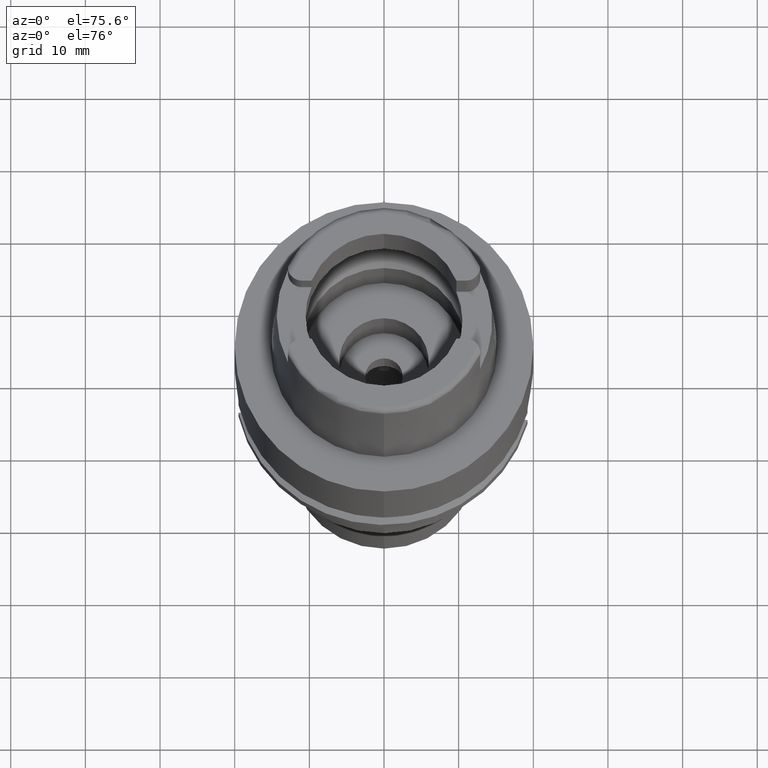
[diagram: clean part render]
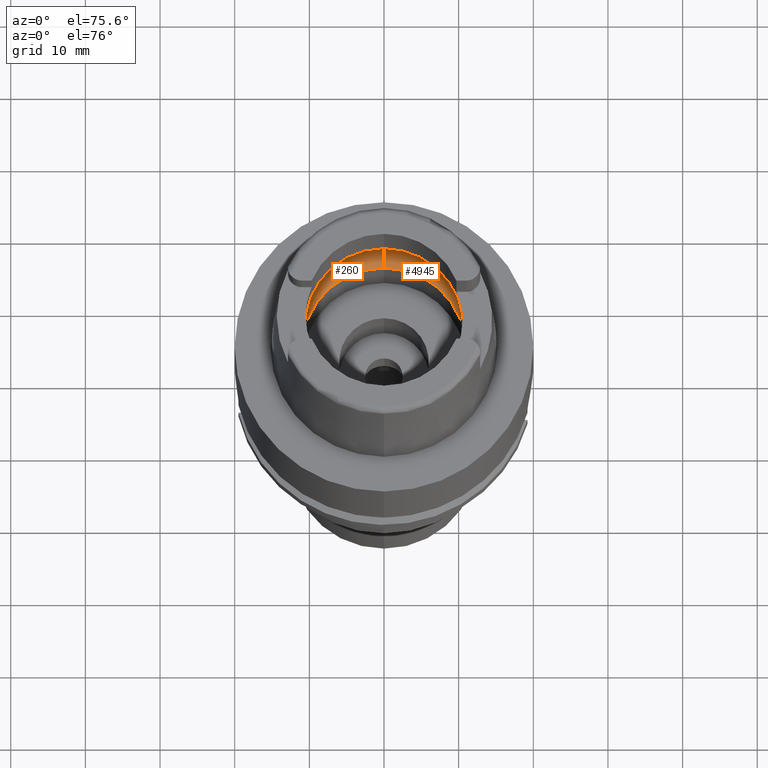
[diagram: same view with one multi-face feature highlighted, each face labeled with its STEP entity id]
A machine part, auxiliary view. The highlighted faces form ONE feature: a constant-radius fillet chain: 2 tangent blend faces with common blend radius 5 mm. The faces share edges in the B-rep.
Their STEP definitions:
[1] entity #260 (Torus):
#19 = AXIS2_PLACEMENT_3D ( 'NONE', #4077, #236, #1952 ) ;
#37 = CARTESIAN_POINT ( 'NONE',  ( -12.74455357708000136, -0.1165037945226000127, 3.700000000000000178 ) ) ;
#62 = CARTESIAN_POINT ( 'NONE',  ( -12.73125908545999962, 0.6899141010797000817, 3.796695173512999677 ) ) ;
#151 = VERTEX_POINT ( 'NONE', #2328 ) ;
#236 = DIRECTION ( 'NONE',  ( 0.0000000000000000000, 0.0000000000000000000, -1.000000000000000000 ) ) ;
#260 = ADVANCED_FACE ( 'NONE', ( #3687 ), #280, .F. ) ;
#280 = TOROIDAL_SURFACE ( 'NONE', #3948, 7.750000000000000000, 5.000000000000000000 ) ;
#296 = AXIS2_PLACEMENT_3D ( 'NONE', #4622, #1125, #5003 ) ;
#481 = CARTESIAN_POINT ( 'NONE',  ( 0.0000000000000000000, 7.750000000000000000, 3.933312163512999504 ) ) ;
#522 = CARTESIAN_POINT ( 'NONE',  ( 0.0000000000000000000, 1.272815980657999902E-14, 3.933312163512999504 ) ) ;
#709 = CIRCLE ( 'NONE', #1789, 5.000000000000000888 ) ;
#820 = ORIENTED_EDGE ( 'NONE', *, *, #4923, .F. ) ;
#864 = ORIENTED_EDGE ( 'NONE', *, *, #1556, .F. ) ;
#904 = CARTESIAN_POINT ( 'NONE',  ( -12.74455357708000136, 0.1165095118199000052, 3.700000000000000178 ) ) ;
#918 = AXIS2_PLACEMENT_3D ( 'NONE', #3385, #1004, #2553 ) ;
#942 = DIRECTION ( 'NONE',  ( 0.0000000000000000000, 0.0000000000000000000, -1.000000000000000000 ) ) ;
#1004 = DIRECTION ( 'NONE',  ( 0.0000000000000000000, 0.0000000000000000000, 1.000000000000000000 ) ) ;
#1125 = DIRECTION ( 'NONE',  ( 0.0000000000000000000, 0.0000000000000000000, -1.000000000000000000 ) ) ;
#1146 = CARTESIAN_POINT ( 'NONE',  ( -12.70998420979999999, 1.009356917307999923, 3.933312163512999504 ) ) ;
#1320 = ORIENTED_EDGE ( 'NONE', *, *, #3336, .T. ) ;
#1355 = DIRECTION ( 'NONE',  ( -1.000000000000000000, 0.0000000000000000000, 0.0000000000000000000 ) ) ;
#1497 = EDGE_CURVE ( 'NONE', #4737, #3466, #2034, .T. ) ;
#1556 = EDGE_CURVE ( 'NONE', #3466, #1939, #2564, .T. ) ;
#1562 = EDGE_CURVE ( 'NONE', #151, #2622, #1913, .T. ) ;
#1732 = DIRECTION ( 'NONE',  ( 0.0000000000000000000, -1.000000000000000000, 0.0000000000000000000 ) ) ;
#1750 = CARTESIAN_POINT ( 'NONE',  ( -12.74455357708000136, 0.0000000000000000000, 3.700000000000000178 ) ) ;
#1789 = AXIS2_PLACEMENT_3D ( 'NONE', #481, #3053, #5091 ) ;
#1792 = EDGE_CURVE ( 'NONE', #1939, #5210, #5117, .T. ) ;
#1913 = CIRCLE ( 'NONE', #3066, 5.000000000000000888 ) ;
#1939 = VERTEX_POINT ( 'NONE', #1146 ) ;
#1952 = DIRECTION ( 'NONE',  ( 0.0000000000000000000, -1.000000000000000000, 0.0000000000000000000 ) ) ;
#2003 = EDGE_CURVE ( 'NONE', #4851, #151, #4767, .T. ) ;
#2030 = ORIENTED_EDGE ( 'NONE', *, *, #1562, .F. ) ;
#2034 = B_SPLINE_CURVE_WITH_KNOTS ( 'NONE', 3,
 ( #3904, #2650, #4718, #2178, #37, #1750 ),
 .UNSPECIFIED., .F., .F.,
 ( 4, 1, 1, 4 ),
 ( 0.0000000000000000000, 0.3333333333333000081, 0.6666666666667000474, 1.000000000000000000 ),
 .UNSPECIFIED. ) ;
#2178 = CARTESIAN_POINT ( 'NONE',  ( -12.74221194267000001, -0.3492494412506000345, 3.717724215756999850 ) ) ;
#2328 = CARTESIAN_POINT ( 'NONE',  ( 0.0000000000000000000, -10.90000000000000036, 0.05033650044222000297 ) ) ;
#2426 = CARTESIAN_POINT ( 'NONE',  ( -12.70998420979999999, -1.009356917307999923, 3.933312163512999504 ) ) ;
#2503 = CARTESIAN_POINT ( 'NONE',  ( 0.0000000000000000000, -12.75000000000000000, 3.933312163512999504 ) ) ;
#2553 = DIRECTION ( 'NONE',  ( 0.0000000000000000000, 1.000000000000000000, 0.0000000000000000000 ) ) ;
#2564 = B_SPLINE_CURVE_WITH_KNOTS ( 'NONE', 3,
 ( #3032, #904, #2617, #62, #3480, #3848 ),
 .UNSPECIFIED., .F., .F.,
 ( 4, 1, 1, 4 ),
 ( 0.0000000000000000000, 0.3333333333333000081, 0.6666666666667000474, 1.000000000000000000 ),
 .UNSPECIFIED. ) ;
#2617 = CARTESIAN_POINT ( 'NONE',  ( -12.74221162530000129, 0.3492624308045999548, 3.717726546203000026 ) ) ;
#2622 = VERTEX_POINT ( 'NONE', #2503 ) ;
#2636 = ORIENTED_EDGE ( 'NONE', *, *, #1497, .F. ) ;
#2650 = CARTESIAN_POINT ( 'NONE',  ( -12.71822740498000215, -0.9055572814164000173, 3.882617095467000290 ) ) ;
#2693 = CARTESIAN_POINT ( 'NONE',  ( -12.74455357708000136, 0.0000000000000000000, 3.700000000000000178 ) ) ;
#3032 = CARTESIAN_POINT ( 'NONE',  ( -12.74455357708000136, 0.0000000000000000000, 3.700000000000000178 ) ) ;
#3053 = DIRECTION ( 'NONE',  ( 1.000000000000000000, 0.0000000000000000000, 0.0000000000000000000 ) ) ;
#3066 = AXIS2_PLACEMENT_3D ( 'NONE', #5181, #1355, #4363 ) ;
#3336 = EDGE_CURVE ( 'NONE', #4851, #5210, #709, .T. ) ;
#3385 = CARTESIAN_POINT ( 'NONE',  ( 0.0000000000000000000, 1.272815980657999902E-14, 0.05033650044222000297 ) ) ;
#3403 = CARTESIAN_POINT ( 'NONE',  ( 0.0000000000000000000, 10.90000000000000036, 0.05033650044222000297 ) ) ;
#3466 = VERTEX_POINT ( 'NONE', #2693 ) ;
#3478 = CARTESIAN_POINT ( 'NONE',  ( 0.0000000000000000000, 12.75000000000000000, 3.933312163512999504 ) ) ;
#3480 = CARTESIAN_POINT ( 'NONE',  ( -12.71822750039000027, 0.9055560800185999959, 3.882616508711999703 ) ) ;
#3687 = FACE_OUTER_BOUND ( 'NONE', #4376, .T. ) ;
#3848 = CARTESIAN_POINT ( 'NONE',  ( -12.70998420979999999, 1.009356917307999923, 3.933312163512999504 ) ) ;
#3904 = CARTESIAN_POINT ( 'NONE',  ( -12.70998420979999999, -1.009356917307999923, 3.933312163512999504 ) ) ;
#3948 = AXIS2_PLACEMENT_3D ( 'NONE', #522, #942, #1732 ) ;
#4063 = ORIENTED_EDGE ( 'NONE', *, *, #1792, .F. ) ;
#4077 = CARTESIAN_POINT ( 'NONE',  ( 0.0000000000000000000, 1.272815980657999902E-14, 3.933312163512999504 ) ) ;
#4363 = DIRECTION ( 'NONE',  ( 0.0000000000000000000, -0.6299999999999791322, -0.7765951326141738997 ) ) ;
#4376 = EDGE_LOOP ( 'NONE', ( #820, #2030, #5495, #1320, #4063, #864, #2636 ) ) ;
#4622 = CARTESIAN_POINT ( 'NONE',  ( 0.0000000000000000000, 1.272815980657999902E-14, 3.933312163512999504 ) ) ;
#4718 = CARTESIAN_POINT ( 'NONE',  ( -12.73125904559999988, -0.6899170685545000792, 3.796695516226999523 ) ) ;
#4737 = VERTEX_POINT ( 'NONE', #2426 ) ;
#4767 = CIRCLE ( 'NONE', #918, 10.90000000000000036 ) ;
#4851 = VERTEX_POINT ( 'NONE', #3403 ) ;
#4852 = CIRCLE ( 'NONE', #19, 12.75000000000000000 ) ;
#4923 = EDGE_CURVE ( 'NONE', #2622, #4737, #4852, .T. ) ;
#5003 = DIRECTION ( 'NONE',  ( -0.9968615066513395462, 0.07916524841634305087, 0.0000000000000000000 ) ) ;
#5091 = DIRECTION ( 'NONE',  ( 0.0000000000000000000, 0.6299999999999791322, -0.7765951326141738997 ) ) ;
#5117 = CIRCLE ( 'NONE', #296, 12.75000000000000533 ) ;
#5181 = CARTESIAN_POINT ( 'NONE',  ( 0.0000000000000000000, -7.750000000000000000, 3.933312163512999504 ) ) ;
#5210 = VERTEX_POINT ( 'NONE', #3478 ) ;
#5495 = ORIENTED_EDGE ( 'NONE', *, *, #2003, .F. ) ;
[2] entity #4945 (Torus):
#119 = ORIENTED_EDGE ( 'NONE', *, *, #569, .F. ) ;
#151 = VERTEX_POINT ( 'NONE', #2328 ) ;
#218 = CARTESIAN_POINT ( 'NONE',  ( 12.70998420979999999, 1.009356917307000057, 3.933312163512999504 ) ) ;
#263 = FACE_OUTER_BOUND ( 'NONE', #3534, .T. ) ;
#326 = DIRECTION ( 'NONE',  ( 0.0000000000000000000, -1.000000000000000000, 0.0000000000000000000 ) ) ;
#481 = CARTESIAN_POINT ( 'NONE',  ( 0.0000000000000000000, 7.750000000000000000, 3.933312163512999504 ) ) ;
#509 = ORIENTED_EDGE ( 'NONE', *, *, #3906, .F. ) ;
#542 = CIRCLE ( 'NONE', #3665, 10.90000000000000036 ) ;
#569 = EDGE_CURVE ( 'NONE', #5210, #1719, #907, .T. ) ;
#608 = CARTESIAN_POINT ( 'NONE',  ( 12.73125911752999961, 0.6899135440065999880, 3.796694954122000087 ) ) ;
#709 = CIRCLE ( 'NONE', #1789, 5.000000000000000888 ) ;
#844 = VERTEX_POINT ( 'NONE', #5372 ) ;
#907 = CIRCLE ( 'NONE', #1000, 12.75000000000000000 ) ;
#1000 = AXIS2_PLACEMENT_3D ( 'NONE', #4917, #1085, #2788 ) ;
#1053 = B_SPLINE_CURVE_WITH_KNOTS ( 'NONE', 3,
 ( #1576, #4107, #4166, #3312, #1555, #1194 ),
 .UNSPECIFIED., .F., .F.,
 ( 4, 1, 1, 4 ),
 ( 0.0000000000000000000, 0.3333333333333000081, 0.6666666666667000474, 1.000000000000000000 ),
 .UNSPECIFIED. ) ;
#1085 = DIRECTION ( 'NONE',  ( 0.0000000000000000000, 0.0000000000000000000, -1.000000000000000000 ) ) ;
#1194 = CARTESIAN_POINT ( 'NONE',  ( 12.70998420979999999, -1.009356917307999923, 3.933312163512999504 ) ) ;
#1292 = CARTESIAN_POINT ( 'NONE',  ( 0.0000000000000000000, 1.272815980657999902E-14, 3.933312163512999504 ) ) ;
#1355 = DIRECTION ( 'NONE',  ( -1.000000000000000000, 0.0000000000000000000, 0.0000000000000000000 ) ) ;
#1437 = AXIS2_PLACEMENT_3D ( 'NONE', #1292, #3501, #4733 ) ;
#1555 = CARTESIAN_POINT ( 'NONE',  ( 12.71822738654000062, -0.9055575135700999478, 3.882617208849000079 ) ) ;
#1562 = EDGE_CURVE ( 'NONE', #151, #2622, #1913, .T. ) ;
#1576 = CARTESIAN_POINT ( 'NONE',  ( 12.74455357708000136, 0.0000000000000000000, 3.700000000000000178 ) ) ;
#1719 = VERTEX_POINT ( 'NONE', #4017 ) ;
#1789 = AXIS2_PLACEMENT_3D ( 'NONE', #481, #3053, #5091 ) ;
#1913 = CIRCLE ( 'NONE', #3066, 5.000000000000000888 ) ;
#2037 = CARTESIAN_POINT ( 'NONE',  ( 0.0000000000000000000, 1.272815980657999902E-14, 3.933312163512999504 ) ) ;
#2328 = CARTESIAN_POINT ( 'NONE',  ( 0.0000000000000000000, -10.90000000000000036, 0.05033650044222000297 ) ) ;
#2437 = AXIS2_PLACEMENT_3D ( 'NONE', #2037, #2860, #5496 ) ;
#2503 = CARTESIAN_POINT ( 'NONE',  ( 0.0000000000000000000, -12.75000000000000000, 3.933312163512999504 ) ) ;
#2622 = VERTEX_POINT ( 'NONE', #2503 ) ;
#2788 = DIRECTION ( 'NONE',  ( 0.0000000000000000000, 1.000000000000000000, 0.0000000000000000000 ) ) ;
#2816 = VERTEX_POINT ( 'NONE', #5134 ) ;
#2860 = DIRECTION ( 'NONE',  ( 0.0000000000000000000, 0.0000000000000000000, -1.000000000000000000 ) ) ;
#2868 = DIRECTION ( 'NONE',  ( 0.0000000000000000000, 0.0000000000000000000, 1.000000000000000000 ) ) ;
#3053 = DIRECTION ( 'NONE',  ( 1.000000000000000000, 0.0000000000000000000, 0.0000000000000000000 ) ) ;
#3066 = AXIS2_PLACEMENT_3D ( 'NONE', #5181, #1355, #4363 ) ;
#3190 = B_SPLINE_CURVE_WITH_KNOTS ( 'NONE', 3,
 ( #218, #4487, #608, #4401, #3607, #3630 ),
 .UNSPECIFIED., .F., .F.,
 ( 4, 1, 1, 4 ),
 ( 0.0000000000000000000, 0.3333333333333000081, 0.6666666666667000474, 1.000000000000000000 ),
 .UNSPECIFIED. ) ;
#3219 = ORIENTED_EDGE ( 'NONE', *, *, #3783, .F. ) ;
#3312 = CARTESIAN_POINT ( 'NONE',  ( 12.73125901363000168, -0.6899176440522000187, 3.796695735634000091 ) ) ;
#3336 = EDGE_CURVE ( 'NONE', #4851, #5210, #709, .T. ) ;
#3356 = EDGE_CURVE ( 'NONE', #2816, #2622, #3851, .T. ) ;
#3403 = CARTESIAN_POINT ( 'NONE',  ( 0.0000000000000000000, 10.90000000000000036, 0.05033650044222000297 ) ) ;
#3478 = CARTESIAN_POINT ( 'NONE',  ( 0.0000000000000000000, 12.75000000000000000, 3.933312163512999504 ) ) ;
#3501 = DIRECTION ( 'NONE',  ( 0.0000000000000000000, 0.0000000000000000000, -1.000000000000000000 ) ) ;
#3534 = EDGE_LOOP ( 'NONE', ( #3219, #119, #4288, #4406, #4454, #5093, #509 ) ) ;
#3607 = CARTESIAN_POINT ( 'NONE',  ( 12.74455357708000136, 0.1165089222837000088, 3.700000000000000178 ) ) ;
#3630 = CARTESIAN_POINT ( 'NONE',  ( 12.74455357708000136, 0.0000000000000000000, 3.700000000000000178 ) ) ;
#3665 = AXIS2_PLACEMENT_3D ( 'NONE', #5019, #2868, #326 ) ;
#3783 = EDGE_CURVE ( 'NONE', #1719, #844, #3190, .T. ) ;
#3851 = CIRCLE ( 'NONE', #1437, 12.75000000000000533 ) ;
#3857 = EDGE_CURVE ( 'NONE', #151, #4851, #542, .T. ) ;
#3906 = EDGE_CURVE ( 'NONE', #844, #2816, #1053, .T. ) ;
#4017 = CARTESIAN_POINT ( 'NONE',  ( 12.70998420979999999, 1.009356917307000057, 3.933312163512999504 ) ) ;
#4107 = CARTESIAN_POINT ( 'NONE',  ( 12.74455357708000136, -0.1165043258977000035, 3.700000000000000178 ) ) ;
#4166 = CARTESIAN_POINT ( 'NONE',  ( 12.74221191776999973, -0.3492506651152000319, 3.717724400314000199 ) ) ;
#4288 = ORIENTED_EDGE ( 'NONE', *, *, #3336, .F. ) ;
#4363 = DIRECTION ( 'NONE',  ( 0.0000000000000000000, -0.6299999999999791322, -0.7765951326141738997 ) ) ;
#4401 = CARTESIAN_POINT ( 'NONE',  ( 12.74221165338000006, 0.3492610745713000120, 3.717726338375999973 ) ) ;
#4406 = ORIENTED_EDGE ( 'NONE', *, *, #3857, .F. ) ;
#4454 = ORIENTED_EDGE ( 'NONE', *, *, #1562, .T. ) ;
#4487 = CARTESIAN_POINT ( 'NONE',  ( 12.71822751822999997, 0.9055558553350999684, 3.882616398978000039 ) ) ;
#4733 = DIRECTION ( 'NONE',  ( 0.9968615066513395462, -0.07916524841634305087, 0.0000000000000000000 ) ) ;
#4851 = VERTEX_POINT ( 'NONE', #3403 ) ;
#4917 = CARTESIAN_POINT ( 'NONE',  ( 0.0000000000000000000, 1.272815980657999902E-14, 3.933312163512999504 ) ) ;
#4938 = TOROIDAL_SURFACE ( 'NONE', #2437, 7.750000000000000000, 5.000000000000000000 ) ;
#4945 = ADVANCED_FACE ( 'NONE', ( #263 ), #4938, .F. ) ;
#5019 = CARTESIAN_POINT ( 'NONE',  ( 0.0000000000000000000, 1.272815980657999902E-14, 0.05033650044222000297 ) ) ;
#5091 = DIRECTION ( 'NONE',  ( 0.0000000000000000000, 0.6299999999999791322, -0.7765951326141738997 ) ) ;
#5093 = ORIENTED_EDGE ( 'NONE', *, *, #3356, .F. ) ;
#5134 = CARTESIAN_POINT ( 'NONE',  ( 12.70998420979999999, -1.009356917307999923, 3.933312163512999504 ) ) ;
#5181 = CARTESIAN_POINT ( 'NONE',  ( 0.0000000000000000000, -7.750000000000000000, 3.933312163512999504 ) ) ;
#5210 = VERTEX_POINT ( 'NONE', #3478 ) ;
#5372 = CARTESIAN_POINT ( 'NONE',  ( 12.74455357708000136, 0.0000000000000000000, 3.700000000000000178 ) ) ;
#5496 = DIRECTION ( 'NONE',  ( 0.0000000000000000000, -1.000000000000000000, 0.0000000000000000000 ) ) ;